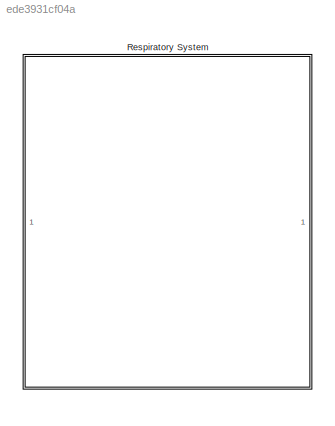
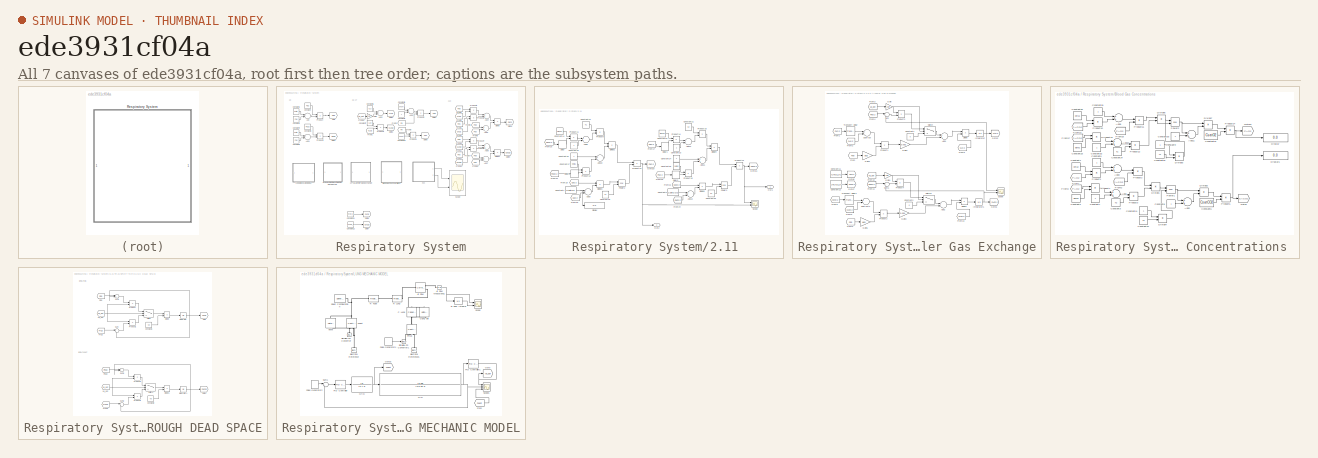
[diagram: thumbnail index - all 7 canvases of the model, root first then tree order]
MODEL slx_ede3931cf04a
KIND model
CONFIG AbsTol = auto
CONFIG EnableMultiTasking = off
CONFIG FixedStep = auto
CONFIG MaxStep = auto
CONFIG MinStep = auto
CONFIG RelTol = 1e-3
CONFIG SampleTimeConstraint = Unconstrained
CONFIG Solver = VariableStepAuto
CONFIG SolverName = VariableStepAuto
CONFIG StartTime = 0.0
CONFIG StopTime = 10.0
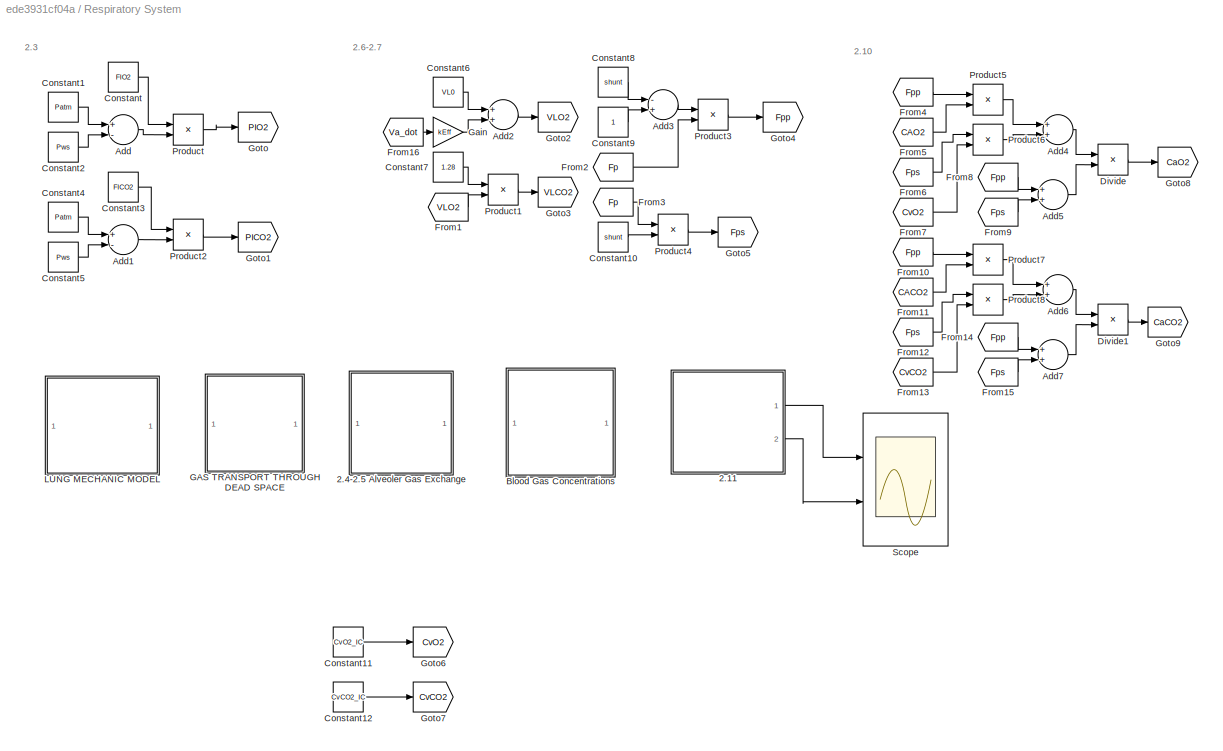
BLOCK [SubSystem] Respiratory System
  Ports = []
  RequestExecContextInheritance = off
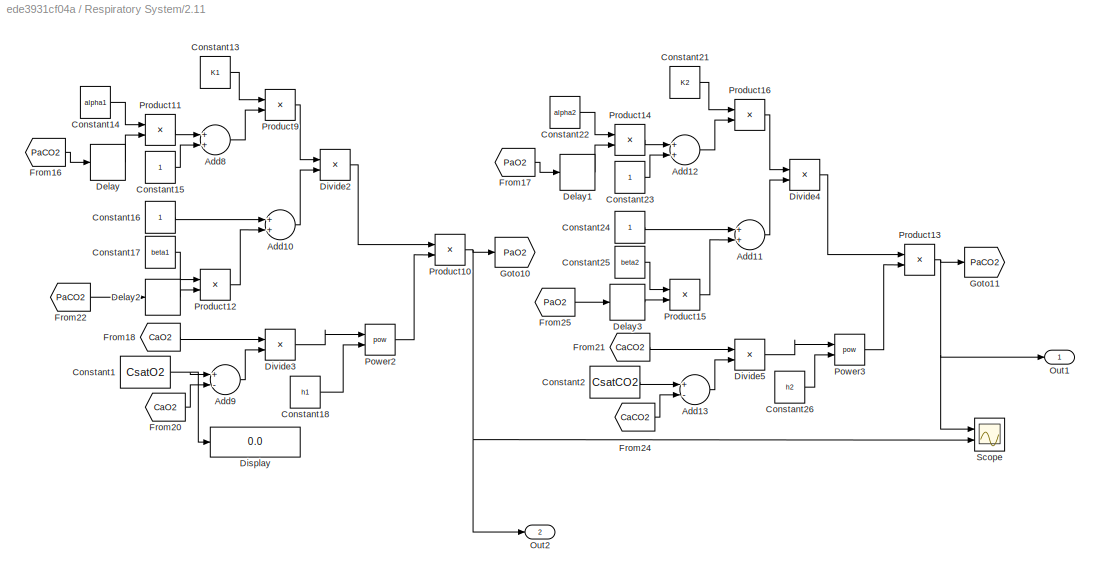
BLOCK [SubSystem] Respiratory System/2.11 
  Ports = [0, 2]
  RequestExecContextInheritance = off
BLOCK [Sum] Respiratory System/2.11 /Add10
  InputSameDT = off
  OutDataTypeStr = Inherit: Inherit via internal rule
  Ports = [2, 1]
  SaturateOnIntegerOverflow = off
BLOCK [Sum] Respiratory System/2.11 /Add11
  InputSameDT = off
  OutDataTypeStr = Inherit: Inherit via internal rule
  Ports = [2, 1]
  SaturateOnIntegerOverflow = off
BLOCK [Sum] Respiratory System/2.11 /Add12
  InputSameDT = off
  OutDataTypeStr = Inherit: Inherit via internal rule
  Ports = [2, 1]
  SaturateOnIntegerOverflow = off
BLOCK [Sum] Respiratory System/2.11 /Add13
  InputSameDT = off
  Inputs = +-
  OutDataTypeStr = Inherit: Inherit via internal rule
  Ports = [2, 1]
  SaturateOnIntegerOverflow = off
BLOCK [Sum] Respiratory System/2.11 /Add8
  InputSameDT = off
  OutDataTypeStr = Inherit: Inherit via internal rule
  Ports = [2, 1]
  SaturateOnIntegerOverflow = off
BLOCK [Sum] Respiratory System/2.11 /Add9
  InputSameDT = off
  Inputs = +-
  OutDataTypeStr = Inherit: Inherit via internal rule
  Ports = [2, 1]
  SaturateOnIntegerOverflow = off
BLOCK [Constant] Respiratory System/2.11 /Constant1
  SampleTime = Tsamp
  Value = CsatO2
BLOCK [Constant] Respiratory System/2.11 /Constant13
  SampleTime = Tsamp
  Value = K1
BLOCK [Constant] Respiratory System/2.11 /Constant14
  SampleTime = Tsamp
  Value = alpha1
BLOCK [Constant] Respiratory System/2.11 /Constant15
  SampleTime = Tsamp
BLOCK [Constant] Respiratory System/2.11 /Constant16
  SampleTime = Tsamp
BLOCK [Constant] Respiratory System/2.11 /Constant17
  SampleTime = Tsamp
  Value = beta1
BLOCK [Constant] Respiratory System/2.11 /Constant18
  SampleTime = Tsamp
  Value = h1
BLOCK [Constant] Respiratory System/2.11 /Constant2
  SampleTime = Tsamp
  Value = CsatCO2
BLOCK [Constant] Respiratory System/2.11 /Constant21
  SampleTime = Tsamp
  Value = K2
BLOCK [Constant] Respiratory System/2.11 /Constant22
  SampleTime = Tsamp
  Value = alpha2
BLOCK [Constant] Respiratory System/2.11 /Constant23
  SampleTime = Tsamp
BLOCK [Constant] Respiratory System/2.11 /Constant24
  SampleTime = Tsamp
BLOCK [Constant] Respiratory System/2.11 /Constant25
  SampleTime = Tsamp
  Value = beta2
BLOCK [Constant] Respiratory System/2.11 /Constant26
  SampleTime = Tsamp
  Value = h2
BLOCK [Delay] Respiratory System/2.11 /Delay
  DelayLength = 1
  InputPortMap = u0
  Ports = [1, 1]
  SampleTime = Tsamp
BLOCK [Delay] Respiratory System/2.11 /Delay1
  DelayLength = 1
  InitialCondition = 0
  InputPortMap = u0
  Ports = [1, 1]
  SampleTime = Tsamp
BLOCK [Delay] Respiratory System/2.11 /Delay2
  DelayLength = 1
  InitialCondition = 0
  InputPortMap = u0
  Ports = [1, 1]
  SampleTime = Tsamp
BLOCK [Delay] Respiratory System/2.11 /Delay3
  DelayLength = 1
  InitialCondition = 0
  InputPortMap = u0
  Ports = [1, 1]
  SampleTime = Tsamp
BLOCK [Display] Respiratory System/2.11 /Display
  Decimation = 1
  Ports = [1]
BLOCK [Product] Respiratory System/2.11 /Divide2
  InputSameDT = off
  Inputs = */
  OutDataTypeStr = Inherit: Inherit via internal rule
  Ports = [2, 1]
  RndMeth = Floor
  SaturateOnIntegerOverflow = off
BLOCK [Product] Respiratory System/2.11 /Divide3
  InputSameDT = off
  Inputs = */
  OutDataTypeStr = Inherit: Inherit via internal rule
  Ports = [2, 1]
  RndMeth = Floor
  SaturateOnIntegerOverflow = off
BLOCK [Product] Respiratory System/2.11 /Divide4
  InputSameDT = off
  Inputs = */
  OutDataTypeStr = Inherit: Inherit via internal rule
  Ports = [2, 1]
  RndMeth = Floor
  SaturateOnIntegerOverflow = off
BLOCK [Product] Respiratory System/2.11 /Divide5
  InputSameDT = off
  Inputs = */
  OutDataTypeStr = Inherit: Inherit via internal rule
  Ports = [2, 1]
  RndMeth = Floor
  SaturateOnIntegerOverflow = off
BLOCK [From] Respiratory System/2.11 /From16
  GotoTag = PaCO2
  TagVisibility = global
BLOCK [From] Respiratory System/2.11 /From17
  GotoTag = PaO2
  TagVisibility = global
BLOCK [From] Respiratory System/2.11 /From18
  GotoTag = CaO2
  TagVisibility = global
BLOCK [From] Respiratory System/2.11 /From20
  GotoTag = CaO2
  TagVisibility = global
BLOCK [From] Respiratory System/2.11 /From21
  GotoTag = CaCO2
  TagVisibility = global
BLOCK [From] Respiratory System/2.11 /From22
  GotoTag = PaCO2
  TagVisibility = global
BLOCK [From] Respiratory System/2.11 /From24
  GotoTag = CaCO2
  TagVisibility = global
BLOCK [From] Respiratory System/2.11 /From25
  GotoTag = PaO2
  TagVisibility = global
BLOCK [Goto] Respiratory System/2.11 /Goto10
  GotoTag = PaO2
  TagVisibility = global
BLOCK [Goto] Respiratory System/2.11 /Goto11
  GotoTag = PaCO2
  TagVisibility = global
BLOCK [Outport] Respiratory System/2.11 /Out1
  IconDisplay = Port number
BLOCK [Outport] Respiratory System/2.11 /Out2
  IconDisplay = Port number
  Port = 2
BLOCK [Math] Respiratory System/2.11 /Power2
  Operator = pow
  Ports = [2, 1]
  SignedPower = off
BLOCK [Math] Respiratory System/2.11 /Power3
  Operator = pow
  Ports = [2, 1]
  SignedPower = off
BLOCK [Product] Respiratory System/2.11 /Product10
  InputSameDT = off
  OutDataTypeStr = Inherit: Inherit via internal rule
  Ports = [2, 1]
  RndMeth = Floor
  SaturateOnIntegerOverflow = off
BLOCK [Product] Respiratory System/2.11 /Product11
  InputSameDT = off
  OutDataTypeStr = Inherit: Inherit via internal rule
  Ports = [2, 1]
  RndMeth = Floor
  SaturateOnIntegerOverflow = off
BLOCK [Product] Respiratory System/2.11 /Product12
  InputSameDT = off
  OutDataTypeStr = Inherit: Inherit via internal rule
  Ports = [2, 1]
  RndMeth = Floor
  SaturateOnIntegerOverflow = off
BLOCK [Product] Respiratory System/2.11 /Product13
  InputSameDT = off
  OutDataTypeStr = Inherit: Inherit via internal rule
  Ports = [2, 1]
  RndMeth = Floor
  SaturateOnIntegerOverflow = off
BLOCK [Product] Respiratory System/2.11 /Product14
  InputSameDT = off
  OutDataTypeStr = Inherit: Inherit via internal rule
  Ports = [2, 1]
  RndMeth = Floor
  SaturateOnIntegerOverflow = off
BLOCK [Product] Respiratory System/2.11 /Product15
  InputSameDT = off
  OutDataTypeStr = Inherit: Inherit via internal rule
  Ports = [2, 1]
  RndMeth = Floor
  SaturateOnIntegerOverflow = off
BLOCK [Product] Respiratory System/2.11 /Product16
  InputSameDT = off
  OutDataTypeStr = Inherit: Inherit via internal rule
  Ports = [2, 1]
  RndMeth = Floor
  SaturateOnIntegerOverflow = off
BLOCK [Product] Respiratory System/2.11 /Product9
  InputSameDT = off
  OutDataTypeStr = Inherit: Inherit via internal rule
  Ports = [2, 1]
  RndMeth = Floor
  SaturateOnIntegerOverflow = off
BLOCK [Scope] Respiratory System/2.11 /Scope
  Floating = off
  NumInputPorts = 2
  Ports = [2]
  ScopeSpecificationString = Simulink.scopes.TimeScopeBlockCfg('CurrentConfiguration', extmgr.ConfigurationSet(extmgr.Configuration('Core','General UI',true,'FigureColor',[1 1 1]),extmgr.Configuration('Core','Source UI',true),extmgr.Configuration('Sources','WiredSimulink',true,'DataLoggingVariableName','ScopeData2'),extmgr.Configuration('Visuals','Time Domain',true,'SerializedDisplays',{struct('MinYLimReal','37.94134','MaxYLi...<+2571ch>
BLOCK [SubSystem] Respiratory System/2.4-2.5 Alveoler Gas Exchange
  Ports = []
  RequestExecContextInheritance = off
BLOCK [Sum] Respiratory System/2.4-2.5 Alveoler Gas Exchange/Add1
  InputSameDT = off
  OutDataTypeStr = Inherit: Inherit via internal rule
  Ports = [2, 1]
  SaturateOnIntegerOverflow = off
BLOCK [Sum] Respiratory System/2.4-2.5 Alveoler Gas Exchange/Add2
  InputSameDT = off
  OutDataTypeStr = Inherit: Inherit via internal rule
  Ports = [2, 1]
  SaturateOnIntegerOverflow = off
BLOCK [Constant] Respiratory System/2.4-2.5 Alveoler Gas Exchange/Constant1
  SampleTime = Tsamp
  Value = 0
BLOCK [Constant] Respiratory System/2.4-2.5 Alveoler Gas Exchange/Constant11
  Commented = on
  SampleTime = Tsamp
  Value = CvO2_IC
BLOCK [Constant] Respiratory System/2.4-2.5 Alveoler Gas Exchange/Constant12
  Commented = on
  SampleTime = Tsamp
  Value = CvCO2_IC
BLOCK [Constant] Respiratory System/2.4-2.5 Alveoler Gas Exchange/Constant2
  SampleTime = Tsamp
  Value = 0
BLOCK [Product] Respiratory System/2.4-2.5 Alveoler Gas Exchange/Divide
  InputSameDT = off
  Inputs = */
  OutDataTypeStr = Inherit: Inherit via internal rule
  Ports = [2, 1]
  RndMeth = Floor
  SaturateOnIntegerOverflow = off
BLOCK [Product] Respiratory System/2.4-2.5 Alveoler Gas Exchange/Divide1
  InputSameDT = off
  Inputs = */
  OutDataTypeStr = Inherit: Inherit via internal rule
  Ports = [2, 1]
  RndMeth = Floor
  SaturateOnIntegerOverflow = off
BLOCK [From] Respiratory System/2.4-2.5 Alveoler Gas Exchange/From
  GotoTag = Fpp
  TagVisibility = global
BLOCK [From] Respiratory System/2.4-2.5 Alveoler Gas Exchange/From1
  GotoTag = CvO2
  TagVisibility = global
BLOCK [From] Respiratory System/2.4-2.5 Alveoler Gas Exchange/From10
  GotoTag = Va_dot
  TagVisibility = global
BLOCK [From] Respiratory System/2.4-2.5 Alveoler Gas Exchange/From11
  GotoTag = PdCO2
  TagVisibility = global
BLOCK [From] Respiratory System/2.4-2.5 Alveoler Gas Exchange/From13
  GotoTag = VLCO2
  TagVisibility = global
BLOCK [From] Respiratory System/2.4-2.5 Alveoler Gas Exchange/From2
  GotoTag = CAO2
  TagVisibility = global
BLOCK [From] Respiratory System/2.4-2.5 Alveoler Gas Exchange/From3
  GotoTag = Va_dot
  TagVisibility = global
BLOCK [From] Respiratory System/2.4-2.5 Alveoler Gas Exchange/From4
  GotoTag = PdO2
  TagVisibility = global
BLOCK [From] Respiratory System/2.4-2.5 Alveoler Gas Exchange/From5
  GotoTag = Fpp
  TagVisibility = global
BLOCK [From] Respiratory System/2.4-2.5 Alveoler Gas Exchange/From6
  GotoTag = VLO2
  TagVisibility = global
BLOCK [From] Respiratory System/2.4-2.5 Alveoler Gas Exchange/From8
  GotoTag = CvCO2
  TagVisibility = global
BLOCK [From] Respiratory System/2.4-2.5 Alveoler Gas Exchange/From9
  GotoTag = CACO2
  TagVisibility = global
BLOCK [Gain] Respiratory System/2.4-2.5 Alveoler Gas Exchange/Gain
  Gain = kEff
  OutDataTypeStr = Inherit: Inherit via internal rule
  ParamDataTypeStr = Inherit: Inherit via internal rule
  SaturateOnIntegerOverflow = off
BLOCK [Gain] Respiratory System/2.4-2.5 Alveoler Gas Exchange/Gain1
  Gain = kEff
  OutDataTypeStr = Inherit: Inherit via internal rule
  ParamDataTypeStr = Inherit: Inherit via internal rule
  SaturateOnIntegerOverflow = off
BLOCK [Gain] Respiratory System/2.4-2.5 Alveoler Gas Exchange/Gain2
  Gain = 0.001
  OutDataTypeStr = Inherit: Inherit via internal rule
  ParamDataTypeStr = Inherit: Inherit via internal rule
  SaturateOnIntegerOverflow = off
BLOCK [Gain] Respiratory System/2.4-2.5 Alveoler Gas Exchange/Gain3
  Gain = 0.001
  OutDataTypeStr = Inherit: Inherit via internal rule
  ParamDataTypeStr = Inherit: Inherit via internal rule
  SaturateOnIntegerOverflow = off
BLOCK [Gain] Respiratory System/2.4-2.5 Alveoler Gas Exchange/Gain4
  Gain = 863
  OutDataTypeStr = Inherit: Inherit via internal rule
  ParamDataTypeStr = Inherit: Inherit via internal rule
  SaturateOnIntegerOverflow = off
BLOCK [Gain] Respiratory System/2.4-2.5 Alveoler Gas Exchange/Gain5
  Gain = 863
  OutDataTypeStr = Inherit: Inherit via internal rule
  ParamDataTypeStr = Inherit: Inherit via internal rule
  SaturateOnIntegerOverflow = off
BLOCK [Goto] Respiratory System/2.4-2.5 Alveoler Gas Exchange/Goto1
  GotoTag = PACO2
  TagVisibility = global
BLOCK [Goto] Respiratory System/2.4-2.5 Alveoler Gas Exchange/Goto2
  GotoTag = PAO2
  TagVisibility = global
BLOCK [Goto] Respiratory System/2.4-2.5 Alveoler Gas Exchange/Goto6
  Commented = on
  GotoTag = CvO2
  TagVisibility = global
BLOCK [Goto] Respiratory System/2.4-2.5 Alveoler Gas Exchange/Goto7
  Commented = on
  GotoTag = CvCO2
  TagVisibility = global
BLOCK [Integrator] Respiratory System/2.4-2.5 Alveoler Gas Exchange/Integrator
  InitialCondition = PAO2_IC
  Ports = [1, 1]
BLOCK [Integrator] Respiratory System/2.4-2.5 Alveoler Gas Exchange/Integrator1
  InitialCondition = PACO2_IC
  Ports = [1, 1]
BLOCK [Product] Respiratory System/2.4-2.5 Alveoler Gas Exchange/Product1
  InputSameDT = off
  OutDataTypeStr = Inherit: Inherit via internal rule
  Ports = [2, 1]
  RndMeth = Floor
  SaturateOnIntegerOverflow = off
BLOCK [Product] Respiratory System/2.4-2.5 Alveoler Gas Exchange/Product2
  InputSameDT = off
  OutDataTypeStr = Inherit: Inherit via internal rule
  Ports = [2, 1]
  RndMeth = Floor
  SaturateOnIntegerOverflow = off
BLOCK [Product] Respiratory System/2.4-2.5 Alveoler Gas Exchange/Product3
  InputSameDT = off
  OutDataTypeStr = Inherit: Inherit via internal rule
  Ports = [2, 1]
  RndMeth = Floor
  SaturateOnIntegerOverflow = off
BLOCK [Product] Respiratory System/2.4-2.5 Alveoler Gas Exchange/Product4
  InputSameDT = off
  OutDataTypeStr = Inherit: Inherit via internal rule
  Ports = [2, 1]
  RndMeth = Floor
  SaturateOnIntegerOverflow = off
BLOCK [Scope] Respiratory System/2.4-2.5 Alveoler Gas Exchange/Scope
  Floating = off
  NumInputPorts = 2
  Ports = [2]
  ScopeSpecificationString = Simulink.scopes.TimeScopeBlockCfg('CurrentConfiguration', extmgr.ConfigurationSet(extmgr.Configuration('Core','General UI',true),extmgr.Configuration('Core','Source UI',true),extmgr.Configuration('Sources','WiredSimulink',true,'DataLoggingVariableName','ScopeData1'),extmgr.Configuration('Visuals','Time Domain',true,'SerializedDisplays',{struct('MinYLimReal','89.79162','MaxYLimReal','101.49139','YL...<+2125ch>
BLOCK [Sum] Respiratory System/2.4-2.5 Alveoler Gas Exchange/Subtract
  InputSameDT = off
  Inputs = +-
  OutDataTypeStr = Inherit: Inherit via internal rule
  Ports = [2, 1]
  SaturateOnIntegerOverflow = off
BLOCK [Sum] Respiratory System/2.4-2.5 Alveoler Gas Exchange/Subtract2
  InputSameDT = off
  Inputs = +-
  OutDataTypeStr = Inherit: Inherit via internal rule
  Ports = [2, 1]
  SaturateOnIntegerOverflow = off
BLOCK [Sum] Respiratory System/2.4-2.5 Alveoler Gas Exchange/Sum
  IconShape = round
  InputSameDT = off
  Inputs = |+-
  OutDataTypeStr = Inherit: Inherit via internal rule
  Ports = [2, 1]
  SaturateOnIntegerOverflow = off
BLOCK [Sum] Respiratory System/2.4-2.5 Alveoler Gas Exchange/Sum1
  IconShape = round
  InputSameDT = off
  Inputs = |+-
  OutDataTypeStr = Inherit: Inherit via internal rule
  Ports = [2, 1]
  SaturateOnIntegerOverflow = off
BLOCK [Switch] Respiratory System/2.4-2.5 Alveoler Gas Exchange/Switch
  Criteria = u2 > Threshold
  InputSameDT = off
  SaturateOnIntegerOverflow = off
BLOCK [Switch] Respiratory System/2.4-2.5 Alveoler Gas Exchange/Switch1
  Criteria = u2 > Threshold
  InputSameDT = off
  SaturateOnIntegerOverflow = off
BLOCK [TransportDelay] Respiratory System/2.4-2.5 Alveoler Gas Exchange/Transport Delay
  BufferSize = 10240
  DelayTime = Tau_TL
  FixedBuffer = on
  InitialOutput = CvO2_IC
  Ports = [1, 1]
BLOCK [TransportDelay] Respiratory System/2.4-2.5 Alveoler Gas Exchange/Transport Delay1
  BufferSize = 10240
  DelayTime = Tau_TL
  FixedBuffer = on
  InitialOutput = CvCO2_IC
  Ports = [1, 1]
BLOCK [Sum] Respiratory System/Add
  InputSameDT = off
  Inputs = +-
  OutDataTypeStr = Inherit: Inherit via internal rule
  Ports = [2, 1]
  SaturateOnIntegerOverflow = off
BLOCK [Sum] Respiratory System/Add1
  InputSameDT = off
  Inputs = +-
  OutDataTypeStr = Inherit: Inherit via internal rule
  Ports = [2, 1]
  SaturateOnIntegerOverflow = off
BLOCK [Sum] Respiratory System/Add2
  InputSameDT = off
  OutDataTypeStr = Inherit: Inherit via internal rule
  Ports = [2, 1]
  SaturateOnIntegerOverflow = off
BLOCK [Sum] Respiratory System/Add3
  InputSameDT = off
  Inputs = -+
  OutDataTypeStr = Inherit: Inherit via internal rule
  Ports = [2, 1]
  SaturateOnIntegerOverflow = off
BLOCK [Sum] Respiratory System/Add4
  InputSameDT = off
  OutDataTypeStr = Inherit: Inherit via internal rule
  Ports = [2, 1]
  SaturateOnIntegerOverflow = off
BLOCK [Sum] Respiratory System/Add5
  InputSameDT = off
  OutDataTypeStr = Inherit: Inherit via internal rule
  Ports = [2, 1]
  SaturateOnIntegerOverflow = off
BLOCK [Sum] Respiratory System/Add6
  InputSameDT = off
  OutDataTypeStr = Inherit: Inherit via internal rule
  Ports = [2, 1]
  SaturateOnIntegerOverflow = off
BLOCK [Sum] Respiratory System/Add7
  InputSameDT = off
  OutDataTypeStr = Inherit: Inherit via internal rule
  Ports = [2, 1]
  SaturateOnIntegerOverflow = off
BLOCK [SubSystem] Respiratory System/Blood Gas Concentrations 
  Ports = []
  RequestExecContextInheritance = off
BLOCK [Sum] Respiratory System/Blood Gas Concentrations /Add1
  InputSameDT = off
  OutDataTypeStr = Inherit: Inherit via internal rule
  Ports = [2, 1]
  SaturateOnIntegerOverflow = off
BLOCK [Sum] Respiratory System/Blood Gas Concentrations /Add10
  InputSameDT = off
  OutDataTypeStr = Inherit: Inherit via internal rule
  Ports = [2, 1]
  SaturateOnIntegerOverflow = off
BLOCK [Sum] Respiratory System/Blood Gas Concentrations /Add11
  InputSameDT = off
  OutDataTypeStr = Inherit: Inherit via internal rule
  Ports = [2, 1]
  SaturateOnIntegerOverflow = off
BLOCK [Sum] Respiratory System/Blood Gas Concentrations /Add2
  InputSameDT = off
  OutDataTypeStr = Inherit: Inherit via internal rule
  Ports = [2, 1]
  SaturateOnIntegerOverflow = off
BLOCK [Sum] Respiratory System/Blood Gas Concentrations /Add3
  InputSameDT = off
  OutDataTypeStr = Inherit: Inherit via internal rule
  Ports = [2, 1]
  SaturateOnIntegerOverflow = off
BLOCK [Sum] Respiratory System/Blood Gas Concentrations /Add9
  InputSameDT = off
  OutDataTypeStr = Inherit: Inherit via internal rule
  Ports = [2, 1]
  SaturateOnIntegerOverflow = off
BLOCK [Constant] Respiratory System/Blood Gas Concentrations /Constant10
  SampleTime = Tsamp
  Value = h2
BLOCK [Constant] Respiratory System/Blood Gas Concentrations /Constant11
  SampleTime = Tsamp
BLOCK [Constant] Respiratory System/Blood Gas Concentrations /Constant2
  SampleTime = Tsamp
  Value = alpha2
BLOCK [Constant] Respiratory System/Blood Gas Concentrations /Constant22
  SampleTime = Tsamp
  Value = h1
BLOCK [Constant] Respiratory System/Blood Gas Concentrations /Constant23
  SampleTime = Tsamp
  Value = alpha1
BLOCK [Constant] Respiratory System/Blood Gas Concentrations /Constant24
  SampleTime = Tsamp
  Value = K1
BLOCK [Constant] Respiratory System/Blood Gas Concentrations /Constant25
  SampleTime = Tsamp
  Value = beta1
BLOCK [Constant] Respiratory System/Blood Gas Concentrations /Constant3
  SampleTime = Tsamp
  Value = K2
BLOCK [Constant] Respiratory System/Blood Gas Concentrations /Constant30
  SampleTime = Tsamp
BLOCK [Constant] Respiratory System/Blood Gas Concentrations /Constant31
  SampleTime = Tsamp
  Value = CsatO2
BLOCK [Constant] Respiratory System/Blood Gas Concentrations /Constant32
  SampleTime = Tsamp
BLOCK [Constant] Respiratory System/Blood Gas Concentrations /Constant33
  SampleTime = Tsamp
BLOCK [Constant] Respiratory System/Blood Gas Concentrations /Constant4
  SampleTime = Tsamp
  Value = beta2
BLOCK [Constant] Respiratory System/Blood Gas Concentrations /Constant5
  SampleTime = Tsamp
BLOCK [Constant] Respiratory System/Blood Gas Concentrations /Constant6
  SampleTime = Tsamp
  Value = CsatCO2
BLOCK [Constant] Respiratory System/Blood Gas Concentrations /Constant7
  SampleTime = Tsamp
BLOCK [Constant] Respiratory System/Blood Gas Concentrations /Constant8
  SampleTime = Tsamp
BLOCK [Constant] Respiratory System/Blood Gas Concentrations /Constant9
  SampleTime = Tsamp
BLOCK [Display] Respiratory System/Blood Gas Concentrations /Display
  Decimation = 1
  Ports = [1]
BLOCK [Display] Respiratory System/Blood Gas Concentrations /Display1
  Decimation = 1
  Ports = [1]
BLOCK [Product] Respiratory System/Blood Gas Concentrations /Divide1
  InputSameDT = off
  Inputs = */
  OutDataTypeStr = Inherit: Inherit via internal rule
  Ports = [2, 1]
  RndMeth = Floor
  SaturateOnIntegerOverflow = off
BLOCK [Product] Respiratory System/Blood Gas Concentrations /Divide2
  InputSameDT = off
  Inputs = */
  OutDataTypeStr = Inherit: Inherit via internal rule
  Ports = [2, 1]
  RndMeth = Floor
  SaturateOnIntegerOverflow = off
BLOCK [Product] Respiratory System/Blood Gas Concentrations /Divide3
  InputSameDT = off
  Inputs = */
  OutDataTypeStr = Inherit: Inherit via internal rule
  Ports = [2, 1]
  RndMeth = Floor
  SaturateOnIntegerOverflow = off
BLOCK [Product] Respiratory System/Blood Gas Concentrations /Divide4
  InputSameDT = off
  Inputs = */
  OutDataTypeStr = Inherit: Inherit via internal rule
  Ports = [2, 1]
  RndMeth = Floor
  SaturateOnIntegerOverflow = off
BLOCK [Product] Respiratory System/Blood Gas Concentrations /Divide6
  InputSameDT = off
  Inputs = */
  OutDataTypeStr = Inherit: Inherit via internal rule
  Ports = [2, 1]
  RndMeth = Floor
  SaturateOnIntegerOverflow = off
BLOCK [Product] Respiratory System/Blood Gas Concentrations /Divide7
  InputSameDT = off
  Inputs = */
  OutDataTypeStr = Inherit: Inherit via internal rule
  Ports = [2, 1]
  RndMeth = Floor
  SaturateOnIntegerOverflow = off
BLOCK [From] Respiratory System/Blood Gas Concentrations /From1
  GotoTag = PAO2
  TagVisibility = global
BLOCK [From] Respiratory System/Blood Gas Concentrations /From13
  GotoTag = PACO2
  TagVisibility = global
BLOCK [From] Respiratory System/Blood Gas Concentrations /From16
  GotoTag = PAO2
  TagVisibility = global
BLOCK [From] Respiratory System/Blood Gas Concentrations /From17
  GotoTag = PACO2
  TagVisibility = global
BLOCK [From] Respiratory System/Blood Gas Concentrations /From2
  GotoTag = PACO2
  TagVisibility = global
BLOCK [From] Respiratory System/Blood Gas Concentrations /From3
  GotoTag = PAO2
  TagVisibility = global
BLOCK [Goto] Respiratory System/Blood Gas Concentrations /Goto1
  GotoTag = CACO2
  TagVisibility = global
BLOCK [Goto] Respiratory System/Blood Gas Concentrations /Goto13
  GotoTag = CAO2
  TagVisibility = global
BLOCK [Math] Respiratory System/Blood Gas Concentrations /Power1
  Operator = pow
  Ports = [2, 1]
  SignedPower = off
BLOCK [Math] Respiratory System/Blood Gas Concentrations /Power2
  Operator = pow
  Ports = [2, 1]
  SignedPower = off
BLOCK [Product] Respiratory System/Blood Gas Concentrations /Product1
  InputSameDT = off
  OutDataTypeStr = Inherit: Inherit via internal rule
  Ports = [2, 1]
  RndMeth = Floor
  SaturateOnIntegerOverflow = off
BLOCK [Product] Respiratory System/Blood Gas Concentrations /Product10
  InputSameDT = off
  OutDataTypeStr = Inherit: Inherit via internal rule
  Ports = [2, 1]
  RndMeth = Floor
  SaturateOnIntegerOverflow = off
BLOCK [Product] Respiratory System/Blood Gas Concentrations /Product11
  InputSameDT = off
  OutDataTypeStr = Inherit: Inherit via internal rule
  Ports = [2, 1]
  RndMeth = Floor
  SaturateOnIntegerOverflow = off
BLOCK [Product] Respiratory System/Blood Gas Concentrations /Product12
  InputSameDT = off
  OutDataTypeStr = Inherit: Inherit via internal rule
  Ports = [2, 1]
  RndMeth = Floor
  SaturateOnIntegerOverflow = off
BLOCK [Product] Respiratory System/Blood Gas Concentrations /Product13
  InputSameDT = off
  OutDataTypeStr = Inherit: Inherit via internal rule
  Ports = [2, 1]
  RndMeth = Floor
  SaturateOnIntegerOverflow = off
BLOCK [Product] Respiratory System/Blood Gas Concentrations /Product14
  InputSameDT = off
  OutDataTypeStr = Inherit: Inherit via internal rule
  Ports = [2, 1]
  RndMeth = Floor
  SaturateOnIntegerOverflow = off
BLOCK [Product] Respiratory System/Blood Gas Concentrations /Product2
  InputSameDT = off
  OutDataTypeStr = Inherit: Inherit via internal rule
  Ports = [2, 1]
  RndMeth = Floor
  SaturateOnIntegerOverflow = off
BLOCK [Product] Respiratory System/Blood Gas Concentrations /Product3
  InputSameDT = off
  OutDataTypeStr = Inherit: Inherit via internal rule
  Ports = [2, 1]
  RndMeth = Floor
  SaturateOnIntegerOverflow = off
BLOCK [Product] Respiratory System/Blood Gas Concentrations /Product4
  InputSameDT = off
  OutDataTypeStr = Inherit: Inherit via internal rule
  Ports = [2, 1]
  RndMeth = Floor
  SaturateOnIntegerOverflow = off
BLOCK [Product] Respiratory System/Blood Gas Concentrations /Product5
  InputSameDT = off
  OutDataTypeStr = Inherit: Inherit via internal rule
  Ports = [2, 1]
  RndMeth = Floor
  SaturateOnIntegerOverflow = off
BLOCK [Constant] Respiratory System/Constant
  SampleTime = Tsamp
  Value = FIO2
BLOCK [Constant] Respiratory System/Constant1
  SampleTime = Tsamp
  Value = Patm
BLOCK [Constant] Respiratory System/Constant10
  SampleTime = Tsamp
  Value = shunt
BLOCK [Constant] Respiratory System/Constant11
  Commented = on
  SampleTime = Tsamp
  Value = CvO2_IC
BLOCK [Constant] Respiratory System/Constant12
  Commented = on
  SampleTime = Tsamp
  Value = CvCO2_IC
BLOCK [Constant] Respiratory System/Constant2
  SampleTime = Tsamp
  Value = Pws
BLOCK [Constant] Respiratory System/Constant3
  SampleTime = Tsamp
  Value = FICO2
BLOCK [Constant] Respiratory System/Constant4
  SampleTime = Tsamp
  Value = Patm
BLOCK [Constant] Respiratory System/Constant5
  SampleTime = Tsamp
  Value = Pws
BLOCK [Constant] Respiratory System/Constant6
  SampleTime = Tsamp
  Value = VL0
BLOCK [Constant] Respiratory System/Constant7
  SampleTime = Tsamp
  Value = 1.28
BLOCK [Constant] Respiratory System/Constant8
  SampleTime = Tsamp
  Value = shunt
BLOCK [Constant] Respiratory System/Constant9
  SampleTime = Tsamp
BLOCK [Product] Respiratory System/Divide
  InputSameDT = off
  Inputs = */
  OutDataTypeStr = Inherit: Inherit via internal rule
  Ports = [2, 1]
  RndMeth = Floor
  SaturateOnIntegerOverflow = off
BLOCK [Product] Respiratory System/Divide1
  InputSameDT = off
  Inputs = */
  OutDataTypeStr = Inherit: Inherit via internal rule
  Ports = [2, 1]
  RndMeth = Floor
  SaturateOnIntegerOverflow = off
BLOCK [From] Respiratory System/From1
  GotoTag = VLO2
  TagVisibility = global
BLOCK [From] Respiratory System/From10
  GotoTag = Fpp
  TagVisibility = global
BLOCK [From] Respiratory System/From11
  GotoTag = CACO2
  TagVisibility = global
BLOCK [From] Respiratory System/From12
  GotoTag = Fps
  TagVisibility = global
BLOCK [From] Respiratory System/From13
  GotoTag = CvCO2
  TagVisibility = global
BLOCK [From] Respiratory System/From14
  GotoTag = Fpp
  TagVisibility = global
BLOCK [From] Respiratory System/From15
  GotoTag = Fps
  TagVisibility = global
BLOCK [From] Respiratory System/From16
  GotoTag = Va_dot
  TagVisibility = global
BLOCK [From] Respiratory System/From2
  GotoTag = Fp
  TagVisibility = global
BLOCK [From] Respiratory System/From3
  GotoTag = Fp
  TagVisibility = global
BLOCK [From] Respiratory System/From4
  GotoTag = Fpp
  TagVisibility = global
BLOCK [From] Respiratory System/From5
  GotoTag = CAO2
  TagVisibility = global
BLOCK [From] Respiratory System/From6
  GotoTag = Fps
  TagVisibility = global
BLOCK [From] Respiratory System/From7
  GotoTag = CvO2
  TagVisibility = global
BLOCK [From] Respiratory System/From8
  GotoTag = Fpp
  TagVisibility = global
BLOCK [From] Respiratory System/From9
  GotoTag = Fps
  TagVisibility = global
BLOCK [SubSystem] Respiratory System/GAS TRANSPORT THROUGH DEAD SPACE
  Ports = []
  RequestExecContextInheritance = off
BLOCK [Constant] Respiratory System/GAS TRANSPORT THROUGH DEAD SPACE/Constant1
  SampleTime = Tsamp
  Value = VD
BLOCK [Constant] Respiratory System/GAS TRANSPORT THROUGH DEAD SPACE/Constant2
  SampleTime = Tsamp
  Value = VD
BLOCK [Product] Respiratory System/GAS TRANSPORT THROUGH DEAD SPACE/Divide
  InputSameDT = off
  Inputs = */
  OutDataTypeStr = Inherit: Inherit via internal rule
  Ports = [2, 1]
  RndMeth = Floor
  SaturateOnIntegerOverflow = off
BLOCK [Product] Respiratory System/GAS TRANSPORT THROUGH DEAD SPACE/Divide1
  InputSameDT = off
  Inputs = */
  OutDataTypeStr = Inherit: Inherit via internal rule
  Ports = [2, 1]
  RndMeth = Floor
  SaturateOnIntegerOverflow = off
BLOCK [Goto] Respiratory System/GAS TRANSPORT THROUGH DEAD SPACE/Goto
  GotoTag = PdO2
  TagVisibility = global
BLOCK [Goto] Respiratory System/GAS TRANSPORT THROUGH DEAD SPACE/Goto1
  GotoTag = PdCO2
  TagVisibility = global
BLOCK [Integrator] Respiratory System/GAS TRANSPORT THROUGH DEAD SPACE/Integrator
  InitialCondition = PdO2_IC
  Ports = [1, 1]
BLOCK [Integrator] Respiratory System/GAS TRANSPORT THROUGH DEAD SPACE/Integrator1
  InitialCondition = PdCO2_IC
  Ports = [1, 1]
BLOCK [From] Respiratory System/GAS TRANSPORT THROUGH DEAD SPACE/PACO2
  GotoTag = PACO2
  TagVisibility = global
BLOCK [From] Respiratory System/GAS TRANSPORT THROUGH DEAD SPACE/PAO2
  GotoTag = PAO2
  TagVisibility = global
BLOCK [From] Respiratory System/GAS TRANSPORT THROUGH DEAD SPACE/PICO2 
  GotoTag = PICO2
  TagVisibility = global
BLOCK [From] Respiratory System/GAS TRANSPORT THROUGH DEAD SPACE/PIO2
  GotoTag = PIO2
  TagVisibility = global
BLOCK [Product] Respiratory System/GAS TRANSPORT THROUGH DEAD SPACE/Product
  InputSameDT = off
  OutDataTypeStr = Inherit: Inherit via internal rule
  Ports = [2, 1]
  RndMeth = Floor
  SaturateOnIntegerOverflow = off
BLOCK [Product] Respiratory System/GAS TRANSPORT THROUGH DEAD SPACE/Product1
  InputSameDT = off
  OutDataTypeStr = Inherit: Inherit via internal rule
  Ports = [2, 1]
  RndMeth = Floor
  SaturateOnIntegerOverflow = off
BLOCK [Product] Respiratory System/GAS TRANSPORT THROUGH DEAD SPACE/Product2
  InputSameDT = off
  OutDataTypeStr = Inherit: Inherit via internal rule
  Ports = [2, 1]
  RndMeth = Floor
  SaturateOnIntegerOverflow = off
BLOCK [Product] Respiratory System/GAS TRANSPORT THROUGH DEAD SPACE/Product3
  InputSameDT = off
  OutDataTypeStr = Inherit: Inherit via internal rule
  Ports = [2, 1]
  RndMeth = Floor
  SaturateOnIntegerOverflow = off
BLOCK [Sum] Respiratory System/GAS TRANSPORT THROUGH DEAD SPACE/Sum
  IconShape = round
  InputSameDT = off
  Inputs = |-+
  OutDataTypeStr = Inherit: Inherit via internal rule
  Ports = [2, 1]
  SaturateOnIntegerOverflow = off
BLOCK [Sum] Respiratory System/GAS TRANSPORT THROUGH DEAD SPACE/Sum1
  IconShape = round
  InputSameDT = off
  Inputs = |+-
  OutDataTypeStr = Inherit: Inherit via internal rule
  Ports = [2, 1]
  SaturateOnIntegerOverflow = off
BLOCK [Sum] Respiratory System/GAS TRANSPORT THROUGH DEAD SPACE/Sum2
  IconShape = round
  InputSameDT = off
  Inputs = |-+
  OutDataTypeStr = Inherit: Inherit via internal rule
  Ports = [2, 1]
  SaturateOnIntegerOverflow = off
BLOCK [Sum] Respiratory System/GAS TRANSPORT THROUGH DEAD SPACE/Sum3
  IconShape = round
  InputSameDT = off
  Inputs = |+-
  OutDataTypeStr = Inherit: Inherit via internal rule
  Ports = [2, 1]
  SaturateOnIntegerOverflow = off
BLOCK [Switch] Respiratory System/GAS TRANSPORT THROUGH DEAD SPACE/Switch
  InputSameDT = off
  SaturateOnIntegerOverflow = off
BLOCK [Switch] Respiratory System/GAS TRANSPORT THROUGH DEAD SPACE/Switch1
  InputSameDT = off
  SaturateOnIntegerOverflow = off
BLOCK [From] Respiratory System/GAS TRANSPORT THROUGH DEAD SPACE/Va_dot
  GotoTag = Va_dot
  TagVisibility = global
BLOCK [From] Respiratory System/GAS TRANSPORT THROUGH DEAD SPACE/Va_dot 
  GotoTag = Va_dot
  TagVisibility = global
BLOCK [Gain] Respiratory System/Gain
  Gain = kEff
  OutDataTypeStr = Inherit: Inherit via internal rule
  ParamDataTypeStr = Inherit: Inherit via internal rule
  SaturateOnIntegerOverflow = off
BLOCK [Goto] Respiratory System/Goto
  GotoTag = PIO2
  TagVisibility = global
BLOCK [Goto] Respiratory System/Goto1
  GotoTag = PICO2
  TagVisibility = global
BLOCK [Goto] Respiratory System/Goto2
  GotoTag = VLO2
  TagVisibility = global
BLOCK [Goto] Respiratory System/Goto3
  GotoTag = VLCO2
  TagVisibility = global
BLOCK [Goto] Respiratory System/Goto4
  GotoTag = Fpp
  TagVisibility = global
BLOCK [Goto] Respiratory System/Goto5
  GotoTag = Fps
  TagVisibility = global
BLOCK [Goto] Respiratory System/Goto6
  Commented = on
  GotoTag = CvO2
  TagVisibility = global
BLOCK [Goto] Respiratory System/Goto7
  Commented = on
  GotoTag = CvCO2
  TagVisibility = global
BLOCK [Goto] Respiratory System/Goto8
  GotoTag = CaO2
  TagVisibility = global
BLOCK [Goto] Respiratory System/Goto9
  GotoTag = CaCO2
  TagVisibility = global
BLOCK [SubSystem] Respiratory System/LUNG MECHANIC MODEL
  Ports = []
  RequestExecContextInheritance = off
BLOCK [Reference] Respiratory System/LUNG MECHANIC MODEL/Air Flow  REF=fl_lib/Electrical/Electrical Sensors/Current Sensor
  Ports = [0, 0, 0, 0, 0, 1, 2]
  SourceBlock = fl_lib/Electrical/Electrical Sensors/Current Sensor
  SourceProductBaseCode = SS
  SourceProductName = Simscape
  SourceType = Current Sensor
BLOCK [Integrator] Respiratory System/LUNG MECHANIC MODEL/Air Flow Integral
  InitialCondition = VReference
  Ports = [1, 1]
BLOCK [Reference] Respiratory System/LUNG MECHANIC MODEL/Air Flow Measurand1  REF=nesl_utility/PS-Simulink
Converter
  Ports = [0, 1, 0, 0, 0, 1]
  SourceBlock = nesl_utility/PS-Simulink\nConverter
  SourceProductBaseCode = SS
  SourceProductName = Simscape
  SourceType = PS-Simulink\nConverter
BLOCK [Reference] Respiratory System/LUNG MECHANIC MODEL/C Lung  REF=fl_lib/Electrical/Electrical Elements/Capacitor
  Ports = [0, 0, 0, 0, 0, 1, 1]
  SourceBlock = fl_lib/Electrical/Electrical Elements/Capacitor
  SourceProductBaseCode = SS
  SourceProductName = Simscape
  SourceType = Capacitor
BLOCK [Reference] Respiratory System/LUNG MECHANIC MODEL/Clung Volt  REF=fl_lib/Electrical/Electrical Sensors/Voltage Sensor
  Ports = [0, 0, 0, 0, 0, 1, 2]
  SourceBlock = fl_lib/Electrical/Electrical Sensors/Voltage Sensor
  SourceProductBaseCode = SS
  SourceProductName = Simscape
  SourceType = Voltage Sensor
BLOCK [Reference] Respiratory System/LUNG MECHANIC MODEL/Electrical Reference  REF=fl_lib/Electrical/Electrical Elements/Electrical Reference
  Ports = [0, 0, 0, 0, 0, 1]
  SourceBlock = fl_lib/Electrical/Electrical Elements/Electrical Reference
  SourceProductBaseCode = SS
  SourceProductName = Simscape
  SourceType = Electrical Reference
BLOCK [Reference] Respiratory System/LUNG MECHANIC MODEL/Electrical Reference1  REF=fl_lib/Electrical/Electrical Elements/Electrical Reference
  Ports = [0, 0, 0, 0, 0, 1]
  SourceBlock = fl_lib/Electrical/Electrical Elements/Electrical Reference
  SourceProductBaseCode = SS
  SourceProductName = Simscape
  SourceType = Electrical Reference
BLOCK [From] Respiratory System/LUNG MECHANIC MODEL/From
  GotoTag = Pvent
  TagVisibility = global
BLOCK [TransferFcn] Respiratory System/LUNG MECHANIC MODEL/G(s) 
  Denominator = [4*0.08 1]
  Numerator = [0.08]
BLOCK [TransferFcn] Respiratory System/LUNG MECHANIC MODEL/Gf(s) 
  Denominator = [0.1 1]
BLOCK [Goto] Respiratory System/LUNG MECHANIC MODEL/Goto
  GotoTag = Va_dot
  TagVisibility = global
BLOCK [Goto] Respiratory System/LUNG MECHANIC MODEL/Goto2
  GotoTag = Pvent
  TagVisibility = global
BLOCK [Reference] Respiratory System/LUNG MECHANIC MODEL/PID Controller  REF=simulink/Continuous/PID Controller
  Ports = [1, 1]
  SourceBlock = simulink/Continuous/PID Controller
  SourceProductBaseCode = SL
  SourceProductName = Simulink
  SourceType = PID 1dof
BLOCK [Reference] Respiratory System/LUNG MECHANIC MODEL/PID Controller1  REF=simulink/Continuous/PID Controller
  Ports = [1, 1]
  SourceBlock = simulink/Continuous/PID Controller
  SourceProductBaseCode = SL
  SourceProductName = Simulink
  SourceType = PID 1dof
BLOCK [Reference] Respiratory System/LUNG MECHANIC MODEL/Pmus  REF=fl_lib/Electrical/Electrical Sources/Controlled Voltage
Source
  Ports = [0, 0, 0, 0, 0, 1, 2]
  SourceBlock = fl_lib/Electrical/Electrical Sources/Controlled Voltage\nSource
  SourceProductBaseCode = SS
  SourceProductName = Simscape
  SourceType = Controlled Voltage\nSource
BLOCK [DiscretePulseGenerator] Respiratory System/LUNG MECHANIC MODEL/Pulse Generator1
  Amplitude = 0
  Period = 5
  Ports = [0, 1]
  PulseType = Time based
  PulseWidth = 35
BLOCK [DiscretePulseGenerator] Respiratory System/LUNG MECHANIC MODEL/Pulse Generator2
  Amplitude = VReference
  Period = 5
  Ports = [0, 1]
  PulseType = Time based
  PulseWidth = 35
BLOCK [Reference] Respiratory System/LUNG MECHANIC MODEL/Pvent  REF=fl_lib/Electrical/Electrical Sources/Controlled Voltage
Source
  Ports = [0, 0, 0, 0, 0, 1, 2]
  SourceBlock = fl_lib/Electrical/Electrical Sources/Controlled Voltage\nSource
  SourceProductBaseCode = SS
  SourceProductName = Simscape
  SourceType = Controlled Voltage\nSource
BLOCK [Reference] Respiratory System/LUNG MECHANIC MODEL/R Lung  REF=fl_lib/Electrical/Electrical Elements/Resistor
  Ports = [0, 0, 0, 0, 0, 1, 1]
  SourceBlock = fl_lib/Electrical/Electrical Elements/Resistor
  SourceProductBaseCode = SS
  SourceProductName = Simscape
  SourceType = Resistor
BLOCK [Reference] Respiratory System/LUNG MECHANIC MODEL/R Tube  REF=fl_lib/Electrical/Electrical Elements/Resistor
  Ports = [0, 0, 0, 0, 0, 1, 1]
  SourceBlock = fl_lib/Electrical/Electrical Elements/Resistor
  SourceProductBaseCode = SS
  SourceProductName = Simscape
  SourceType = Resistor
BLOCK [Scope] Respiratory System/LUNG MECHANIC MODEL/Scope
  Floating = off
  NumInputPorts = 2
  Ports = [2]
  ScopeSpecificationString = Simulink.scopes.TimeScopeBlockCfg('CurrentConfiguration', extmgr.ConfigurationSet(extmgr.Configuration('Core','General UI',true,'FigureColor',[1 1 1]),extmgr.Configuration('Core','Source UI',true),extmgr.Configuration('Sources','WiredSimulink',true),extmgr.Configuration('Visuals','Time Domain',true,'SerializedDisplays',{struct('MinYLimReal','-1.00000','MaxYLimReal','1.00000','YLabelReal','Amplitud...<+3071ch>
BLOCK [Scope] Respiratory System/LUNG MECHANIC MODEL/Scope1
  Floating = off
  NumInputPorts = 3
  Ports = [3]
  ScopeSpecificationString = Simulink.scopes.TimeScopeBlockCfg('CurrentConfiguration', extmgr.ConfigurationSet(extmgr.Configuration('Core','General UI',true,'FigureColor',[1 1 1]),extmgr.Configuration('Core','Source UI',true),extmgr.Configuration('Sources','WiredSimulink',true,'DataLoggingVariableName','ScopeData1'),extmgr.Configuration('Visuals','Time Domain',true,'SerializedDisplays',{struct('MinYLimReal','-1.04724','MaxYLi...<+2995ch>
BLOCK [Reference] Respiratory System/LUNG MECHANIC MODEL/Simulink-PS Converter  REF=nesl_utility/Simulink-PS
Converter
  Ports = [1, 0, 0, 0, 0, 0, 1]
  SourceBlock = nesl_utility/Simulink-PS\nConverter
  SourceProductBaseCode = SS
  SourceProductName = Simscape
  SourceType = Simulink-PS\nConverter
BLOCK [Reference] Respiratory System/LUNG MECHANIC MODEL/Simulink-PS Converter1  REF=nesl_utility/Simulink-PS
Converter
  Ports = [1, 0, 0, 0, 0, 0, 1]
  SourceBlock = nesl_utility/Simulink-PS\nConverter
  SourceProductBaseCode = SS
  SourceProductName = Simscape
  SourceType = Simulink-PS\nConverter
BLOCK [Reference] Respiratory System/LUNG MECHANIC MODEL/Solver Configuration  REF=nesl_utility/Solver
Configuration
  Ports = [0, 0, 0, 0, 0, 0, 1]
  SourceBlock = nesl_utility/Solver\nConfiguration
  SourceProductBaseCode = SS
  SourceProductName = Simscape
  SourceType = Solver\nConfiguration
BLOCK [Sum] Respiratory System/LUNG MECHANIC MODEL/Sum1
  IconShape = round
  InputSameDT = off
  Inputs = |+-
  OutDataTypeStr = Inherit: Inherit via internal rule
  Ports = [2, 1]
  SaturateOnIntegerOverflow = off
BLOCK [Reference] Respiratory System/LUNG MECHANIC MODEL/Ventil  REF=fl_lib/Electrical/Electrical Sensors/Voltage Sensor
  Ports = [0, 0, 0, 0, 0, 1, 2]
  SourceBlock = fl_lib/Electrical/Electrical Sensors/Voltage Sensor
  SourceProductBaseCode = SS
  SourceProductName = Simscape
  SourceType = Voltage Sensor
BLOCK [Product] Respiratory System/Product
  InputSameDT = off
  OutDataTypeStr = Inherit: Inherit via internal rule
  Ports = [2, 1]
  RndMeth = Floor
  SaturateOnIntegerOverflow = off
BLOCK [Product] Respiratory System/Product1
  InputSameDT = off
  OutDataTypeStr = Inherit: Inherit via internal rule
  Ports = [2, 1]
  RndMeth = Floor
  SaturateOnIntegerOverflow = off
BLOCK [Product] Respiratory System/Product2
  InputSameDT = off
  OutDataTypeStr = Inherit: Inherit via internal rule
  Ports = [2, 1]
  RndMeth = Floor
  SaturateOnIntegerOverflow = off
BLOCK [Product] Respiratory System/Product3
  InputSameDT = off
  OutDataTypeStr = Inherit: Inherit via internal rule
  Ports = [2, 1]
  RndMeth = Floor
  SaturateOnIntegerOverflow = off
BLOCK [Product] Respiratory System/Product4
  InputSameDT = off
  OutDataTypeStr = Inherit: Inherit via internal rule
  Ports = [2, 1]
  RndMeth = Floor
  SaturateOnIntegerOverflow = off
BLOCK [Product] Respiratory System/Product5
  InputSameDT = off
  OutDataTypeStr = Inherit: Inherit via internal rule
  Ports = [2, 1]
  RndMeth = Floor
  SaturateOnIntegerOverflow = off
BLOCK [Product] Respiratory System/Product6
  InputSameDT = off
  OutDataTypeStr = Inherit: Inherit via internal rule
  Ports = [2, 1]
  RndMeth = Floor
  SaturateOnIntegerOverflow = off
BLOCK [Product] Respiratory System/Product7
  InputSameDT = off
  OutDataTypeStr = Inherit: Inherit via internal rule
  Ports = [2, 1]
  RndMeth = Floor
  SaturateOnIntegerOverflow = off
BLOCK [Product] Respiratory System/Product8
  InputSameDT = off
  OutDataTypeStr = Inherit: Inherit via internal rule
  Ports = [2, 1]
  RndMeth = Floor
  SaturateOnIntegerOverflow = off
BLOCK [Scope] Respiratory System/Scope
  Floating = off
  NumInputPorts = 2
  Ports = [2]
  ScopeSpecificationString = Simulink.scopes.TimeScopeBlockCfg('CurrentConfiguration', extmgr.ConfigurationSet(extmgr.Configuration('Core','General UI',true),extmgr.Configuration('Core','Source UI',true),extmgr.Configuration('Sources','WiredSimulink',true,'DataLoggingVariableName','ScopeData1'),extmgr.Configuration('Visuals','Time Domain',true),extmgr.Configuration('Tools','Plot Navigation',true),extmgr.Configuration('Tools',...<+40ch>
ANNOTATION Respiratory System: 2.10
ANNOTATION Respiratory System: 2.3
ANNOTATION Respiratory System: 2.6-2.7
ANNOTATION Respiratory System/GAS TRANSPORT THROUGH DEAD SPACE: BREATH IN
ANNOTATION Respiratory System/GAS TRANSPORT THROUGH DEAD SPACE: BREATH OUT
LINE Respiratory System/2.11 /Add10:1 -> Respiratory System/2.11 /Divide2:2
LINE Respiratory System/2.11 /Add11:1 -> Respiratory System/2.11 /Divide4:2
LINE Respiratory System/2.11 /Add12:1 -> Respiratory System/2.11 /Product16:2
LINE Respiratory System/2.11 /Add13:1 -> Respiratory System/2.11 /Divide5:2
LINE Respiratory System/2.11 /Add8:1 -> Respiratory System/2.11 /Product9:2
LINE Respiratory System/2.11 /Add9:1 -> Respiratory System/2.11 /Divide3:2
LINE Respiratory System/2.11 /Constant13:1 -> Respiratory System/2.11 /Product9:1
LINE Respiratory System/2.11 /Constant14:1 -> Respiratory System/2.11 /Product11:1
LINE Respiratory System/2.11 /Constant15:1 -> Respiratory System/2.11 /Add8:2
LINE Respiratory System/2.11 /Constant16:1 -> Respiratory System/2.11 /Add10:1
LINE Respiratory System/2.11 /Constant17:1 -> Respiratory System/2.11 /Product12:1
LINE Respiratory System/2.11 /Constant18:1 -> Respiratory System/2.11 /Power2:2
NET Respiratory System/2.11 /Constant1:1 -> Respiratory System/2.11 /Add9:1, Respiratory System/2.11 /Display:1
LINE Respiratory System/2.11 /Constant21:1 -> Respiratory System/2.11 /Product16:1
LINE Respiratory System/2.11 /Constant22:1 -> Respiratory System/2.11 /Product14:1
LINE Respiratory System/2.11 /Constant23:1 -> Respiratory System/2.11 /Add12:2
LINE Respiratory System/2.11 /Constant24:1 -> Respiratory System/2.11 /Add11:1
LINE Respiratory System/2.11 /Constant25:1 -> Respiratory System/2.11 /Product15:1
LINE Respiratory System/2.11 /Constant26:1 -> Respiratory System/2.11 /Power3:2
LINE Respiratory System/2.11 /Constant2:1 -> Respiratory System/2.11 /Add13:1
LINE Respiratory System/2.11 /Delay1:1 -> Respiratory System/2.11 /Product14:2
LINE Respiratory System/2.11 /Delay2:1 -> Respiratory System/2.11 /Product12:2
LINE Respiratory System/2.11 /Delay3:1 -> Respiratory System/2.11 /Product15:2
LINE Respiratory System/2.11 /Delay:1 -> Respiratory System/2.11 /Product11:2
LINE Respiratory System/2.11 /Divide2:1 -> Respiratory System/2.11 /Product10:1
LINE Respiratory System/2.11 /Divide3:1 -> Respiratory System/2.11 /Power2:1
LINE Respiratory System/2.11 /Divide4:1 -> Respiratory System/2.11 /Product13:1
LINE Respiratory System/2.11 /Divide5:1 -> Respiratory System/2.11 /Power3:1
LINE Respiratory System/2.11 /From16:1 -> Respiratory System/2.11 /Delay:1
LINE Respiratory System/2.11 /From17:1 -> Respiratory System/2.11 /Delay1:1
LINE Respiratory System/2.11 /From18:1 -> Respiratory System/2.11 /Divide3:1
LINE Respiratory System/2.11 /From20:1 -> Respiratory System/2.11 /Add9:2
LINE Respiratory System/2.11 /From21:1 -> Respiratory System/2.11 /Divide5:1
LINE Respiratory System/2.11 /From22:1 -> Respiratory System/2.11 /Delay2:1
LINE Respiratory System/2.11 /From24:1 -> Respiratory System/2.11 /Add13:2
LINE Respiratory System/2.11 /From25:1 -> Respiratory System/2.11 /Delay3:1
LINE Respiratory System/2.11 /Power2:1 -> Respiratory System/2.11 /Product10:2
LINE Respiratory System/2.11 /Power3:1 -> Respiratory System/2.11 /Product13:2
NET Respiratory System/2.11 /Product10:1 -> Respiratory System/2.11 /Goto10:1, Respiratory System/2.11 /Out2:1, Respiratory System/2.11 /Scope:2
LINE Respiratory System/2.11 /Product11:1 -> Respiratory System/2.11 /Add8:1
LINE Respiratory System/2.11 /Product12:1 -> Respiratory System/2.11 /Add10:2
NET Respiratory System/2.11 /Product13:1 -> Respiratory System/2.11 /Goto11:1, Respiratory System/2.11 /Out1:1, Respiratory System/2.11 /Scope:1
LINE Respiratory System/2.11 /Product14:1 -> Respiratory System/2.11 /Add12:1
LINE Respiratory System/2.11 /Product15:1 -> Respiratory System/2.11 /Add11:2
LINE Respiratory System/2.11 /Product16:1 -> Respiratory System/2.11 /Divide4:1
LINE Respiratory System/2.11 /Product9:1 -> Respiratory System/2.11 /Divide2:1
LINE Respiratory System/2.11 :1 -> Respiratory System/Scope:1
LINE Respiratory System/2.11 :2 -> Respiratory System/Scope:2
LINE Respiratory System/2.4-2.5 Alveoler Gas Exchange/Add1:1 -> Respiratory System/2.4-2.5 Alveoler Gas Exchange/Divide:1
LINE Respiratory System/2.4-2.5 Alveoler Gas Exchange/Add2:1 -> Respiratory System/2.4-2.5 Alveoler Gas Exchange/Divide1:1
LINE Respiratory System/2.4-2.5 Alveoler Gas Exchange/Constant11:1 -> Respiratory System/2.4-2.5 Alveoler Gas Exchange/Goto6:1
LINE Respiratory System/2.4-2.5 Alveoler Gas Exchange/Constant12:1 -> Respiratory System/2.4-2.5 Alveoler Gas Exchange/Goto7:1
LINE Respiratory System/2.4-2.5 Alveoler Gas Exchange/Constant1:1 -> Respiratory System/2.4-2.5 Alveoler Gas Exchange/Switch:3
LINE Respiratory System/2.4-2.5 Alveoler Gas Exchange/Constant2:1 -> Respiratory System/2.4-2.5 Alveoler Gas Exchange/Switch1:3
LINE Respiratory System/2.4-2.5 Alveoler Gas Exchange/Divide1:1 -> Respiratory System/2.4-2.5 Alveoler Gas Exchange/Integrator1:1
LINE Respiratory System/2.4-2.5 Alveoler Gas Exchange/Divide:1 -> Respiratory System/2.4-2.5 Alveoler Gas Exchange/Integrator:1
LINE Respiratory System/2.4-2.5 Alveoler Gas Exchange/From10:1 -> Respiratory System/2.4-2.5 Alveoler Gas Exchange/Gain1:1
LINE Respiratory System/2.4-2.5 Alveoler Gas Exchange/From11:1 -> Respiratory System/2.4-2.5 Alveoler Gas Exchange/Sum1:1
LINE Respiratory System/2.4-2.5 Alveoler Gas Exchange/From13:1 -> Respiratory System/2.4-2.5 Alveoler Gas Exchange/Divide1:2
LINE Respiratory System/2.4-2.5 Alveoler Gas Exchange/From1:1 -> Respiratory System/2.4-2.5 Alveoler Gas Exchange/Transport Delay:1
LINE Respiratory System/2.4-2.5 Alveoler Gas Exchange/From2:1 -> Respiratory System/2.4-2.5 Alveoler Gas Exchange/Subtract:2
LINE Respiratory System/2.4-2.5 Alveoler Gas Exchange/From3:1 -> Respiratory System/2.4-2.5 Alveoler Gas Exchange/Gain:1
LINE Respiratory System/2.4-2.5 Alveoler Gas Exchange/From4:1 -> Respiratory System/2.4-2.5 Alveoler Gas Exchange/Sum:1
LINE Respiratory System/2.4-2.5 Alveoler Gas Exchange/From5:1 -> Respiratory System/2.4-2.5 Alveoler Gas Exchange/Gain5:1
LINE Respiratory System/2.4-2.5 Alveoler Gas Exchange/From6:1 -> Respiratory System/2.4-2.5 Alveoler Gas Exchange/Divide:2
LINE Respiratory System/2.4-2.5 Alveoler Gas Exchange/From8:1 -> Respiratory System/2.4-2.5 Alveoler Gas Exchange/Transport Delay1:1
LINE Respiratory System/2.4-2.5 Alveoler Gas Exchange/From9:1 -> Respiratory System/2.4-2.5 Alveoler Gas Exchange/Subtract2:2
LINE Respiratory System/2.4-2.5 Alveoler Gas Exchange/From:1 -> Respiratory System/2.4-2.5 Alveoler Gas Exchange/Gain4:1
NET Respiratory System/2.4-2.5 Alveoler Gas Exchange/Gain1:1 -> Respiratory System/2.4-2.5 Alveoler Gas Exchange/Product4:1, Respiratory System/2.4-2.5 Alveoler Gas Exchange/Switch1:2
LINE Respiratory System/2.4-2.5 Alveoler Gas Exchange/Gain2:1 -> Respiratory System/2.4-2.5 Alveoler Gas Exchange/Add1:2
LINE Respiratory System/2.4-2.5 Alveoler Gas Exchange/Gain3:1 -> Respiratory System/2.4-2.5 Alveoler Gas Exchange/Add2:2
LINE Respiratory System/2.4-2.5 Alveoler Gas Exchange/Gain4:1 -> Respiratory System/2.4-2.5 Alveoler Gas Exchange/Product1:2
LINE Respiratory System/2.4-2.5 Alveoler Gas Exchange/Gain5:1 -> Respiratory System/2.4-2.5 Alveoler Gas Exchange/Product2:2
NET Respiratory System/2.4-2.5 Alveoler Gas Exchange/Gain:1 -> Respiratory System/2.4-2.5 Alveoler Gas Exchange/Product3:1, Respiratory System/2.4-2.5 Alveoler Gas Exchange/Switch:2
NET Respiratory System/2.4-2.5 Alveoler Gas Exchange/Integrator1:1 -> Respiratory System/2.4-2.5 Alveoler Gas Exchange/Goto1:1, Respiratory System/2.4-2.5 Alveoler Gas Exchange/Scope:2, Respiratory System/2.4-2.5 Alveoler Gas Exchange/Sum1:2
NET Respiratory System/2.4-2.5 Alveoler Gas Exchange/Integrator:1 -> Respiratory System/2.4-2.5 Alveoler Gas Exchange/Goto2:1, Respiratory System/2.4-2.5 Alveoler Gas Exchange/Scope:1, Respiratory System/2.4-2.5 Alveoler Gas Exchange/Sum:2
LINE Respiratory System/2.4-2.5 Alveoler Gas Exchange/Product1:1 -> Respiratory System/2.4-2.5 Alveoler Gas Exchange/Gain2:1
LINE Respiratory System/2.4-2.5 Alveoler Gas Exchange/Product2:1 -> Respiratory System/2.4-2.5 Alveoler Gas Exchange/Gain3:1
LINE Respiratory System/2.4-2.5 Alveoler Gas Exchange/Product3:1 -> Respiratory System/2.4-2.5 Alveoler Gas Exchange/Switch:1
LINE Respiratory System/2.4-2.5 Alveoler Gas Exchange/Product4:1 -> Respiratory System/2.4-2.5 Alveoler Gas Exchange/Switch1:1
LINE Respiratory System/2.4-2.5 Alveoler Gas Exchange/Subtract2:1 -> Respiratory System/2.4-2.5 Alveoler Gas Exchange/Product2:1
LINE Respiratory System/2.4-2.5 Alveoler Gas Exchange/Subtract:1 -> Respiratory System/2.4-2.5 Alveoler Gas Exchange/Product1:1
LINE Respiratory System/2.4-2.5 Alveoler Gas Exchange/Sum1:1 -> Respiratory System/2.4-2.5 Alveoler Gas Exchange/Product4:2
LINE Respiratory System/2.4-2.5 Alveoler Gas Exchange/Sum:1 -> Respiratory System/2.4-2.5 Alveoler Gas Exchange/Product3:2
LINE Respiratory System/2.4-2.5 Alveoler Gas Exchange/Switch1:1 -> Respiratory System/2.4-2.5 Alveoler Gas Exchange/Add2:1
LINE Respiratory System/2.4-2.5 Alveoler Gas Exchange/Switch:1 -> Respiratory System/2.4-2.5 Alveoler Gas Exchange/Add1:1
LINE Respiratory System/2.4-2.5 Alveoler Gas Exchange/Transport Delay1:1 -> Respiratory System/2.4-2.5 Alveoler Gas Exchange/Subtract2:1
LINE Respiratory System/2.4-2.5 Alveoler Gas Exchange/Transport Delay:1 -> Respiratory System/2.4-2.5 Alveoler Gas Exchange/Subtract:1
LINE Respiratory System/Add1:1 -> Respiratory System/Product2:2
LINE Respiratory System/Add2:1 -> Respiratory System/Goto2:1
LINE Respiratory System/Add3:1 -> Respiratory System/Product3:1
LINE Respiratory System/Add4:1 -> Respiratory System/Divide:1
LINE Respiratory System/Add5:1 -> Respiratory System/Divide:2
LINE Respiratory System/Add6:1 -> Respiratory System/Divide1:1
LINE Respiratory System/Add7:1 -> Respiratory System/Divide1:2
LINE Respiratory System/Add:1 -> Respiratory System/Product:2
LINE Respiratory System/Blood Gas Concentrations /Add10:1 -> Respiratory System/Blood Gas Concentrations /Product12:1
LINE Respiratory System/Blood Gas Concentrations /Add11:1 -> Respiratory System/Blood Gas Concentrations /Divide7:2
LINE Respiratory System/Blood Gas Concentrations /Add1:1 -> Respiratory System/Blood Gas Concentrations /Product3:1
LINE Respiratory System/Blood Gas Concentrations /Add2:1 -> Respiratory System/Blood Gas Concentrations /Divide2:2
LINE Respiratory System/Blood Gas Concentrations /Add3:1 -> Respiratory System/Blood Gas Concentrations /Product2:1
LINE Respiratory System/Blood Gas Concentrations /Add9:1 -> Respiratory System/Blood Gas Concentrations /Product11:1
LINE Respiratory System/Blood Gas Concentrations /Constant10:1 -> Respiratory System/Blood Gas Concentrations /Divide4:2
LINE Respiratory System/Blood Gas Concentrations /Constant11:1 -> Respiratory System/Blood Gas Concentrations /Divide4:1
LINE Respiratory System/Blood Gas Concentrations /Constant22:1 -> Respiratory System/Blood Gas Concentrations /Divide3:2
LINE Respiratory System/Blood Gas Concentrations /Constant23:1 -> Respiratory System/Blood Gas Concentrations /Product13:2
LINE Respiratory System/Blood Gas Concentrations /Constant24:1 -> Respiratory System/Blood Gas Concentrations /Product12:2
LINE Respiratory System/Blood Gas Concentrations /Constant25:1 -> Respiratory System/Blood Gas Concentrations /Product10:1
LINE Respiratory System/Blood Gas Concentrations /Constant2:1 -> Respiratory System/Blood Gas Concentrations /Product4:2
LINE Respiratory System/Blood Gas Concentrations /Constant30:1 -> Respiratory System/Blood Gas Concentrations /Add9:1
LINE Respiratory System/Blood Gas Concentrations /Constant31:1 -> Respiratory System/Blood Gas Concentrations /Product14:2
LINE Respiratory System/Blood Gas Concentrations /Constant32:1 -> Respiratory System/Blood Gas Concentrations /Add10:2
LINE Respiratory System/Blood Gas Concentrations /Constant33:1 -> Respiratory System/Blood Gas Concentrations /Add11:2
LINE Respiratory System/Blood Gas Concentrations /Constant3:1 -> Respiratory System/Blood Gas Concentrations /Product3:2
LINE Respiratory System/Blood Gas Concentrations /Constant4:1 -> Respiratory System/Blood Gas Concentrations /Product1:1
LINE Respiratory System/Blood Gas Concentrations /Constant5:1 -> Respiratory System/Blood Gas Concentrations /Add3:1
LINE Respiratory System/Blood Gas Concentrations /Constant6:1 -> Respiratory System/Blood Gas Concentrations /Product5:2
LINE Respiratory System/Blood Gas Concentrations /Constant7:1 -> Respiratory System/Blood Gas Concentrations /Add1:2
LINE Respiratory System/Blood Gas Concentrations /Constant8:1 -> Respiratory System/Blood Gas Concentrations /Add2:2
LINE Respiratory System/Blood Gas Concentrations /Constant9:1 -> Respiratory System/Blood Gas Concentrations /Divide3:1
LINE Respiratory System/Blood Gas Concentrations /Divide1:1 -> Respiratory System/Blood Gas Concentrations /Power1:1
LINE Respiratory System/Blood Gas Concentrations /Divide2:1 -> Respiratory System/Blood Gas Concentrations /Product5:1
LINE Respiratory System/Blood Gas Concentrations /Divide3:1 -> Respiratory System/Blood Gas Concentrations /Power2:2
LINE Respiratory System/Blood Gas Concentrations /Divide4:1 -> Respiratory System/Blood Gas Concentrations /Power1:2
LINE Respiratory System/Blood Gas Concentrations /Divide6:1 -> Respiratory System/Blood Gas Concentrations /Power2:1
LINE Respiratory System/Blood Gas Concentrations /Divide7:1 -> Respiratory System/Blood Gas Concentrations /Product14:1
LINE Respiratory System/Blood Gas Concentrations /From13:1 -> Respiratory System/Blood Gas Concentrations /Product10:2
LINE Respiratory System/Blood Gas Concentrations /From16:1 -> Respiratory System/Blood Gas Concentrations /Product11:2
LINE Respiratory System/Blood Gas Concentrations /From17:1 -> Respiratory System/Blood Gas Concentrations /Product13:1
LINE Respiratory System/Blood Gas Concentrations /From1:1 -> Respiratory System/Blood Gas Concentrations /Product1:2
LINE Respiratory System/Blood Gas Concentrations /From2:1 -> Respiratory System/Blood Gas Concentrations /Product2:2
LINE Respiratory System/Blood Gas Concentrations /From3:1 -> Respiratory System/Blood Gas Concentrations /Product4:1
NET Respiratory System/Blood Gas Concentrations /Power1:1 -> Respiratory System/Blood Gas Concentrations /Add2:1, Respiratory System/Blood Gas Concentrations /Divide2:1
NET Respiratory System/Blood Gas Concentrations /Power2:1 -> Respiratory System/Blood Gas Concentrations /Add11:1, Respiratory System/Blood Gas Concentrations /Divide7:1
LINE Respiratory System/Blood Gas Concentrations /Product10:1 -> Respiratory System/Blood Gas Concentrations /Add9:2
LINE Respiratory System/Blood Gas Concentrations /Product11:1 -> Respiratory System/Blood Gas Concentrations /Divide6:1
LINE Respiratory System/Blood Gas Concentrations /Product12:1 -> Respiratory System/Blood Gas Concentrations /Divide6:2
LINE Respiratory System/Blood Gas Concentrations /Product13:1 -> Respiratory System/Blood Gas Concentrations /Add10:1
NET Respiratory System/Blood Gas Concentrations /Product14:1 -> Respiratory System/Blood Gas Concentrations /Display:1, Respiratory System/Blood Gas Concentrations /Goto13:1
LINE Respiratory System/Blood Gas Concentrations /Product1:1 -> Respiratory System/Blood Gas Concentrations /Add3:2
LINE Respiratory System/Blood Gas Concentrations /Product2:1 -> Respiratory System/Blood Gas Concentrations /Divide1:1
LINE Respiratory System/Blood Gas Concentrations /Product3:1 -> Respiratory System/Blood Gas Concentrations /Divide1:2
LINE Respiratory System/Blood Gas Concentrations /Product4:1 -> Respiratory System/Blood Gas Concentrations /Add1:1
NET Respiratory System/Blood Gas Concentrations /Product5:1 -> Respiratory System/Blood Gas Concentrations /Display1:1, Respiratory System/Blood Gas Concentrations /Goto1:1
LINE Respiratory System/Constant10:1 -> Respiratory System/Product4:2
LINE Respiratory System/Constant11:1 -> Respiratory System/Goto6:1
LINE Respiratory System/Constant12:1 -> Respiratory System/Goto7:1
LINE Respiratory System/Constant1:1 -> Respiratory System/Add:1
LINE Respiratory System/Constant2:1 -> Respiratory System/Add:2
LINE Respiratory System/Constant3:1 -> Respiratory System/Product2:1
LINE Respiratory System/Constant4:1 -> Respiratory System/Add1:1
LINE Respiratory System/Constant5:1 -> Respiratory System/Add1:2
LINE Respiratory System/Constant6:1 -> Respiratory System/Add2:1
LINE Respiratory System/Constant7:1 -> Respiratory System/Product1:1
LINE Respiratory System/Constant8:1 -> Respiratory System/Add3:1
LINE Respiratory System/Constant9:1 -> Respiratory System/Add3:2
LINE Respiratory System/Constant:1 -> Respiratory System/Product:1
LINE Respiratory System/Divide1:1 -> Respiratory System/Goto9:1
LINE Respiratory System/Divide:1 -> Respiratory System/Goto8:1
LINE Respiratory System/From10:1 -> Respiratory System/Product7:1
LINE Respiratory System/From11:1 -> Respiratory System/Product7:2
LINE Respiratory System/From12:1 -> Respiratory System/Product8:1
LINE Respiratory System/From13:1 -> Respiratory System/Product8:2
LINE Respiratory System/From14:1 -> Respiratory System/Add7:1
LINE Respiratory System/From15:1 -> Respiratory System/Add7:2
LINE Respiratory System/From16:1 -> Respiratory System/Gain:1
LINE Respiratory System/From1:1 -> Respiratory System/Product1:2
LINE Respiratory System/From2:1 -> Respiratory System/Product3:2
LINE Respiratory System/From3:1 -> Respiratory System/Product4:1
LINE Respiratory System/From4:1 -> Respiratory System/Product5:1
LINE Respiratory System/From5:1 -> Respiratory System/Product5:2
LINE Respiratory System/From6:1 -> Respiratory System/Product6:1
LINE Respiratory System/From7:1 -> Respiratory System/Product6:2
LINE Respiratory System/From8:1 -> Respiratory System/Add5:1
LINE Respiratory System/From9:1 -> Respiratory System/Add5:2
LINE Respiratory System/GAS TRANSPORT THROUGH DEAD SPACE/Constant1:1 -> Respiratory System/GAS TRANSPORT THROUGH DEAD SPACE/Divide:2
LINE Respiratory System/GAS TRANSPORT THROUGH DEAD SPACE/Constant2:1 -> Respiratory System/GAS TRANSPORT THROUGH DEAD SPACE/Divide1:2
LINE Respiratory System/GAS TRANSPORT THROUGH DEAD SPACE/Divide1:1 -> Respiratory System/GAS TRANSPORT THROUGH DEAD SPACE/Integrator1:1
LINE Respiratory System/GAS TRANSPORT THROUGH DEAD SPACE/Divide:1 -> Respiratory System/GAS TRANSPORT THROUGH DEAD SPACE/Integrator:1
NET Respiratory System/GAS TRANSPORT THROUGH DEAD SPACE/Integrator1:1 -> Respiratory System/GAS TRANSPORT THROUGH DEAD SPACE/Goto1:1, Respiratory System/GAS TRANSPORT THROUGH DEAD SPACE/Sum2:2, Respiratory System/GAS TRANSPORT THROUGH DEAD SPACE/Sum3:2
NET Respiratory System/GAS TRANSPORT THROUGH DEAD SPACE/Integrator:1 -> Respiratory System/GAS TRANSPORT THROUGH DEAD SPACE/Goto:1, Respiratory System/GAS TRANSPORT THROUGH DEAD SPACE/Sum1:2, Respiratory System/GAS TRANSPORT THROUGH DEAD SPACE/Sum:2
LINE Respiratory System/GAS TRANSPORT THROUGH DEAD SPACE/PACO2:1 -> Respiratory System/GAS TRANSPORT THROUGH DEAD SPACE/Sum2:1
LINE Respiratory System/GAS TRANSPORT THROUGH DEAD SPACE/PAO2:1 -> Respiratory System/GAS TRANSPORT THROUGH DEAD SPACE/Sum:1
LINE Respiratory System/GAS TRANSPORT THROUGH DEAD SPACE/PICO2 :1 -> Respiratory System/GAS TRANSPORT THROUGH DEAD SPACE/Sum3:1
LINE Respiratory System/GAS TRANSPORT THROUGH DEAD SPACE/PIO2:1 -> Respiratory System/GAS TRANSPORT THROUGH DEAD SPACE/Sum1:1
LINE Respiratory System/GAS TRANSPORT THROUGH DEAD SPACE/Product1:1 -> Respiratory System/GAS TRANSPORT THROUGH DEAD SPACE/Switch:3
LINE Respiratory System/GAS TRANSPORT THROUGH DEAD SPACE/Product2:1 -> Respiratory System/GAS TRANSPORT THROUGH DEAD SPACE/Switch1:1
LINE Respiratory System/GAS TRANSPORT THROUGH DEAD SPACE/Product3:1 -> Respiratory System/GAS TRANSPORT THROUGH DEAD SPACE/Switch1:3
LINE Respiratory System/GAS TRANSPORT THROUGH DEAD SPACE/Product:1 -> Respiratory System/GAS TRANSPORT THROUGH DEAD SPACE/Switch:1
LINE Respiratory System/GAS TRANSPORT THROUGH DEAD SPACE/Sum1:1 -> Respiratory System/GAS TRANSPORT THROUGH DEAD SPACE/Product:1
LINE Respiratory System/GAS TRANSPORT THROUGH DEAD SPACE/Sum2:1 -> Respiratory System/GAS TRANSPORT THROUGH DEAD SPACE/Product3:2
LINE Respiratory System/GAS TRANSPORT THROUGH DEAD SPACE/Sum3:1 -> Respiratory System/GAS TRANSPORT THROUGH DEAD SPACE/Product2:1
LINE Respiratory System/GAS TRANSPORT THROUGH DEAD SPACE/Sum:1 -> Respiratory System/GAS TRANSPORT THROUGH DEAD SPACE/Product1:2
LINE Respiratory System/GAS TRANSPORT THROUGH DEAD SPACE/Switch1:1 -> Respiratory System/GAS TRANSPORT THROUGH DEAD SPACE/Divide1:1
LINE Respiratory System/GAS TRANSPORT THROUGH DEAD SPACE/Switch:1 -> Respiratory System/GAS TRANSPORT THROUGH DEAD SPACE/Divide:1
NET Respiratory System/GAS TRANSPORT THROUGH DEAD SPACE/Va_dot :1 -> Respiratory System/GAS TRANSPORT THROUGH DEAD SPACE/Product2:2, Respiratory System/GAS TRANSPORT THROUGH DEAD SPACE/Product3:1, Respiratory System/GAS TRANSPORT THROUGH DEAD SPACE/Switch1:2
NET Respiratory System/GAS TRANSPORT THROUGH DEAD SPACE/Va_dot:1 -> Respiratory System/GAS TRANSPORT THROUGH DEAD SPACE/Product1:1, Respiratory System/GAS TRANSPORT THROUGH DEAD SPACE/Product:2, Respiratory System/GAS TRANSPORT THROUGH DEAD SPACE/Switch:2
LINE Respiratory System/Gain:1 -> Respiratory System/Add2:2
LINE Respiratory System/LUNG MECHANIC MODEL/Air Flow Integral:1 -> Respiratory System/LUNG MECHANIC MODEL/Scope:2
NET Respiratory System/LUNG MECHANIC MODEL/Air Flow Measurand1:1 -> Respiratory System/LUNG MECHANIC MODEL/Air Flow Integral:1, Respiratory System/LUNG MECHANIC MODEL/Scope:1
LINE Respiratory System/LUNG MECHANIC MODEL/From:1 -> Respiratory System/LUNG MECHANIC MODEL/Scope1:3
NET Respiratory System/LUNG MECHANIC MODEL/G(s) :1 -> Respiratory System/LUNG MECHANIC MODEL/PID Controller1:1, Respiratory System/LUNG MECHANIC MODEL/Scope1:2, Respiratory System/LUNG MECHANIC MODEL/Sum1:2
NET Respiratory System/LUNG MECHANIC MODEL/Gf(s) :1 -> Respiratory System/LUNG MECHANIC MODEL/G(s) :1, Respiratory System/LUNG MECHANIC MODEL/Goto2:1
NET Respiratory System/LUNG MECHANIC MODEL/PID Controller1:1 -> Respiratory System/LUNG MECHANIC MODEL/Goto:1, Respiratory System/LUNG MECHANIC MODEL/Scope1:1
LINE Respiratory System/LUNG MECHANIC MODEL/PID Controller:1 -> Respiratory System/LUNG MECHANIC MODEL/Gf(s) :1
LINE Respiratory System/LUNG MECHANIC MODEL/Pulse Generator1:1 -> Respiratory System/LUNG MECHANIC MODEL/Simulink-PS Converter1:1
LINE Respiratory System/LUNG MECHANIC MODEL/Pulse Generator2:1 -> Respiratory System/LUNG MECHANIC MODEL/Sum1:1
LINE Respiratory System/LUNG MECHANIC MODEL/Sum1:1 -> Respiratory System/LUNG MECHANIC MODEL/PID Controller:1
LINE Respiratory System/Product1:1 -> Respiratory System/Goto3:1
LINE Respiratory System/Product2:1 -> Respiratory System/Goto1:1
LINE Respiratory System/Product3:1 -> Respiratory System/Goto4:1
LINE Respiratory System/Product4:1 -> Respiratory System/Goto5:1
LINE Respiratory System/Product5:1 -> Respiratory System/Add4:1
LINE Respiratory System/Product6:1 -> Respiratory System/Add4:2
LINE Respiratory System/Product7:1 -> Respiratory System/Add6:1
LINE Respiratory System/Product8:1 -> Respiratory System/Add6:2
LINE Respiratory System/Product:1 -> Respiratory System/Goto:1
PLINE Respiratory System/LUNG MECHANIC MODEL/Air Flow Measurand1:LConn1 -- Respiratory System/LUNG MECHANIC MODEL/Air Flow:RConn1
PLINE Respiratory System/LUNG MECHANIC MODEL/Air Flow:LConn1 -- Respiratory System/LUNG MECHANIC MODEL/R Lung:RConn1
PNET net1: Respiratory System/LUNG MECHANIC MODEL/Air Flow:RConn2 -- Respiratory System/LUNG MECHANIC MODEL/C Lung:LConn1 -- Respiratory System/LUNG MECHANIC MODEL/Clung Volt:LConn1
PNET net2: Respiratory System/LUNG MECHANIC MODEL/C Lung:RConn1 -- Respiratory System/LUNG MECHANIC MODEL/Clung Volt:RConn2 -- Respiratory System/LUNG MECHANIC MODEL/Pmus:LConn1
PLINE Respiratory System/LUNG MECHANIC MODEL/Electrical Reference1:LConn1 -- Respiratory System/LUNG MECHANIC MODEL/Pmus:RConn2
PNET net3: Respiratory System/LUNG MECHANIC MODEL/Electrical Reference:LConn1 -- Respiratory System/LUNG MECHANIC MODEL/Pvent:RConn2 -- Respiratory System/LUNG MECHANIC MODEL/Ventil:RConn2
PLINE Respiratory System/LUNG MECHANIC MODEL/Pmus:RConn1 -- Respiratory System/LUNG MECHANIC MODEL/Simulink-PS Converter1:RConn1
PNET net4: Respiratory System/LUNG MECHANIC MODEL/Pvent:LConn1 -- Respiratory System/LUNG MECHANIC MODEL/R Tube:LConn1 -- Respiratory System/LUNG MECHANIC MODEL/Solver Configuration:RConn1 -- Respiratory System/LUNG MECHANIC MODEL/Ventil:LConn1
PLINE Respiratory System/LUNG MECHANIC MODEL/Pvent:RConn1 -- Respiratory System/LUNG MECHANIC MODEL/Simulink-PS Converter:RConn1
PLINE Respiratory System/LUNG MECHANIC MODEL/R Lung:LConn1 -- Respiratory System/LUNG MECHANIC MODEL/R Tube:RConn1
note: NET lines group one-source signal fan-out (src -> all destinations, sorted); 1:1 wires keep LINE; PNET lines group multi-terminal physical nets as a canonical sorted terminal list (undirected conserving connections); 2-terminal nets keep the pairwise PLINE form
